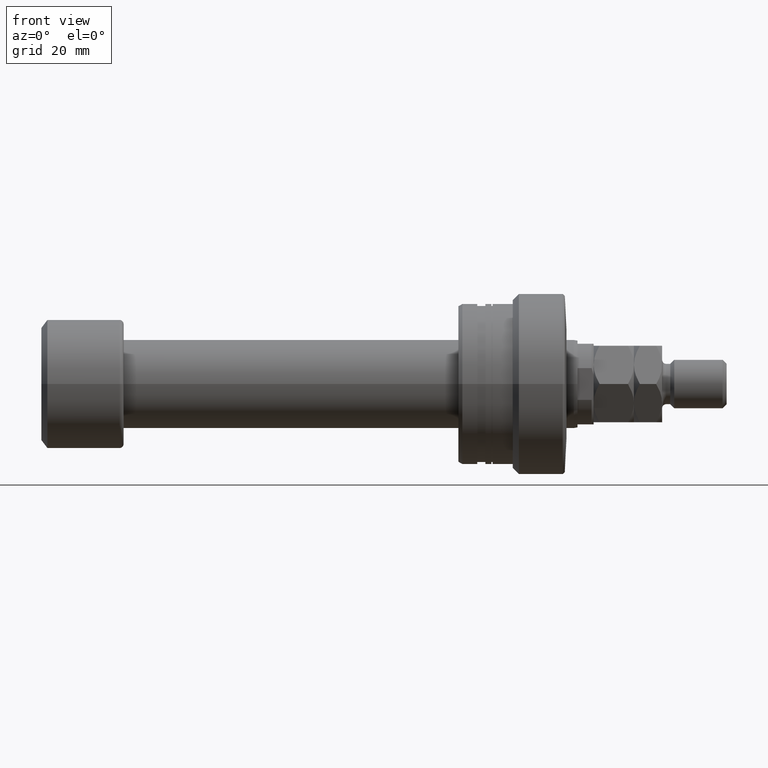
[diagram: clean part render]
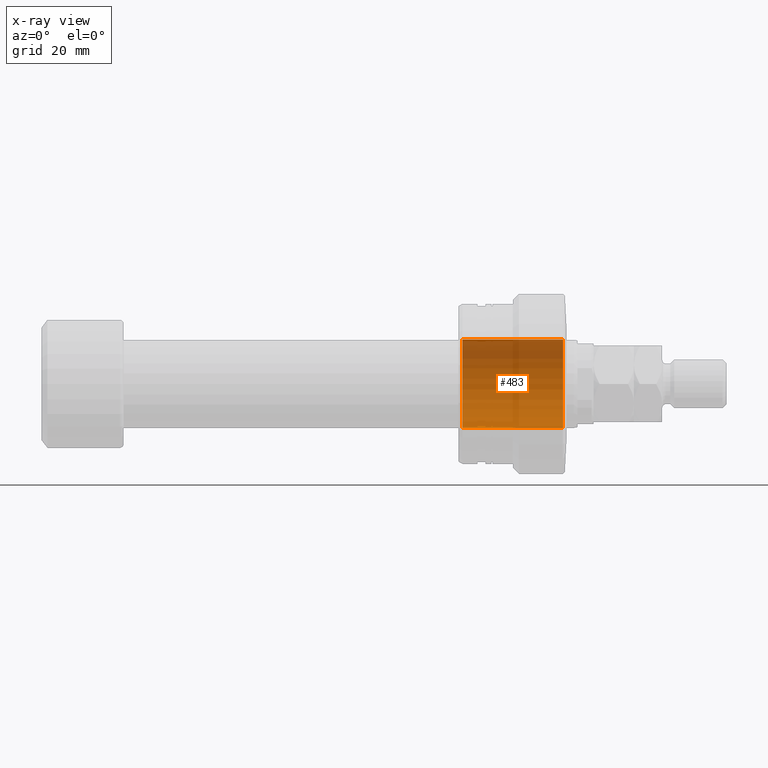
[diagram: x-ray — body ghosted, one internal face saturated and labeled with its STEP entity id]
A machine part, front view, then the same camera in x-ray: the body is ghosted and one INTERNAL B-rep face — a face not visible from any outside direction — is saturated and labeled: STEP entity #483.
In plain terms, the highlighted cylindrical surface (partial cylindrical patch) has radius 11 mm, axis along (1, 0, 0).
Its self-contained STEP definition (entity closure, byte-faithful):
#44 = CARTESIAN_POINT ( 'NONE',  ( -58.61269837220807233, 1.347111479062088405E-15, 11.00000000000000000 ) ) ;
#173 = DIRECTION ( 'NONE',  ( 0.000000000000000000, 0.000000000000000000, 1.000000000000000000 ) ) ;
#336 = CARTESIAN_POINT ( 'NONE',  ( -58.61269837220807233, 0.000000000000000000, -11.00000000000000000 ) ) ;
#483 = ADVANCED_FACE ( 'NONE', ( #2164 ), #1577, .F. ) ;
#492 = VERTEX_POINT ( 'NONE', #3984 ) ;
#614 = DIRECTION ( 'NONE',  ( 1.000000000000000000, 0.000000000000000000, 0.000000000000000000 ) ) ;
#639 = CARTESIAN_POINT ( 'NONE',  ( -1.500000000000000000, 1.347111479062088405E-15, 11.00000000000000000 ) ) ;
#669 = LINE ( 'NONE', #336, #2010 ) ;
#838 = AXIS2_PLACEMENT_3D ( 'NONE', #3756, #982, #1221 ) ;
#864 = VERTEX_POINT ( 'NONE', #3716 ) ;
#982 = DIRECTION ( 'NONE',  ( 1.000000000000000000, -0.000000000000000000, -0.000000000000000000 ) ) ;
#1221 = DIRECTION ( 'NONE',  ( 0.000000000000000000, 0.000000000000000000, -1.000000000000000000 ) ) ;
#1294 = DIRECTION ( 'NONE',  ( 1.000000000000000000, -0.000000000000000000, -0.000000000000000000 ) ) ;
#1356 = CARTESIAN_POINT ( 'NONE',  ( -1.500000000000000000, 0.000000000000000000, -11.00000000000000000 ) ) ;
#1358 = ORIENTED_EDGE ( 'NONE', *, *, #3732, .T. ) ;
#1378 = VERTEX_POINT ( 'NONE', #639 ) ;
#1530 = EDGE_CURVE ( 'NONE', #864, #1378, #2835, .T. ) ;
#1577 = CYLINDRICAL_SURFACE ( 'NONE', #838, 11.00000000000000000 ) ;
#1679 = DIRECTION ( 'NONE',  ( -1.000000000000000000, -0.000000000000000000, -0.000000000000000000 ) ) ;
#1715 = AXIS2_PLACEMENT_3D ( 'NONE', #3058, #614, #3644 ) ;
#1977 = ORIENTED_EDGE ( 'NONE', *, *, #3858, .T. ) ;
#2010 = VECTOR ( 'NONE', #2868, 1000.000000000000000 ) ;
#2042 = VERTEX_POINT ( 'NONE', #1356 ) ;
#2164 = FACE_OUTER_BOUND ( 'NONE', #3845, .T. ) ;
#2580 = CARTESIAN_POINT ( 'NONE',  ( -26.49999999999999645, 0.000000000000000000, 0.000000000000000000 ) ) ;
#2598 = VECTOR ( 'NONE', #1294, 1000.000000000000000 ) ;
#2612 = CIRCLE ( 'NONE', #1715, 11.00000000000000000 ) ;
#2654 = ORIENTED_EDGE ( 'NONE', *, *, #1530, .F. ) ;
#2835 = LINE ( 'NONE', #44, #2598 ) ;
#2868 = DIRECTION ( 'NONE',  ( 1.000000000000000000, -0.000000000000000000, -0.000000000000000000 ) ) ;
#3058 = CARTESIAN_POINT ( 'NONE',  ( -1.500000000000000000, 0.000000000000000000, 0.000000000000000000 ) ) ;
#3143 = EDGE_CURVE ( 'NONE', #2042, #1378, #2612, .T. ) ;
#3301 = ORIENTED_EDGE ( 'NONE', *, *, #3143, .T. ) ;
#3423 = AXIS2_PLACEMENT_3D ( 'NONE', #2580, #1679, #173 ) ;
#3644 = DIRECTION ( 'NONE',  ( 0.000000000000000000, 0.000000000000000000, -1.000000000000000000 ) ) ;
#3716 = CARTESIAN_POINT ( 'NONE',  ( -26.49999999999999645, 1.347111479062088405E-15, 11.00000000000000000 ) ) ;
#3732 = EDGE_CURVE ( 'NONE', #492, #2042, #669, .T. ) ;
#3756 = CARTESIAN_POINT ( 'NONE',  ( -58.61269837220807233, 0.000000000000000000, 0.000000000000000000 ) ) ;
#3845 = EDGE_LOOP ( 'NONE', ( #2654, #1977, #1358, #3301 ) ) ;
#3858 = EDGE_CURVE ( 'NONE', #864, #492, #3884, .T. ) ;
#3884 = CIRCLE ( 'NONE', #3423, 11.00000000000000000 ) ;
#3984 = CARTESIAN_POINT ( 'NONE',  ( -26.49999999999999645, 0.000000000000000000, -11.00000000000000000 ) ) ;